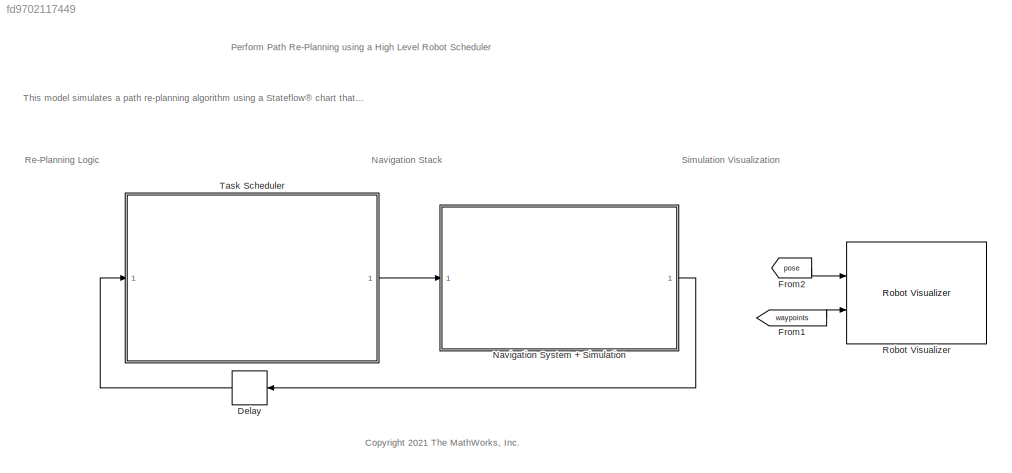
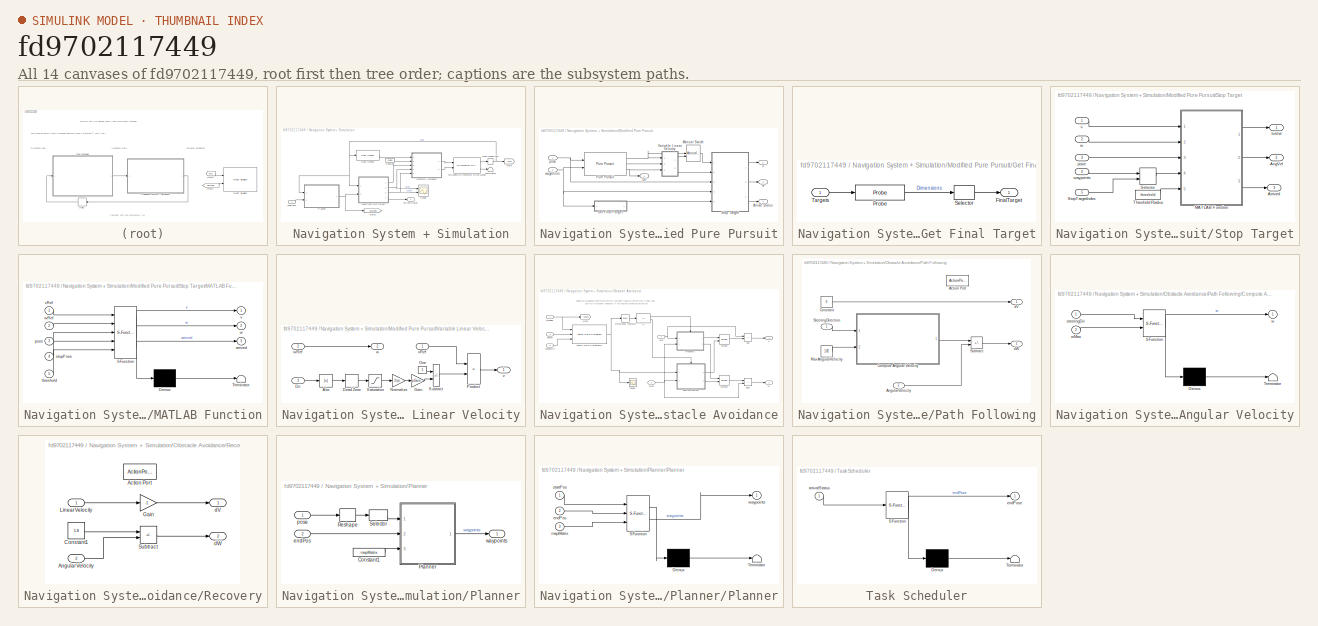
[diagram: thumbnail index - all 14 canvases of the model, root first then tree order]
MODEL slx_fd9702117449
KIND model
CONFIG AbsTol = auto
CONFIG EnableMultiTasking = on
CONFIG FixedStep = 0.01
CONFIG MaxStep = auto
CONFIG MinStep = auto
CONFIG PreLoadFcn = load('turtleBotMazeMap.mat')\nangles=0:pi/180:2*pi;\n[mapMatrix,mapResolution, mapOrigin] = convertMapToMatrix(myOccMap);\n
CONFIG RelTol = 1e-3
CONFIG SampleTimeConstraint = Unconstrained
CONFIG SolverName = VariableStepAuto
CONFIG StartTime = 0.0
CONFIG StopTime = inf
BLOCK [Delay] Delay
  DelayLength = 1
  InputPortMap = u0
  Ports = [1, 1]
BLOCK [From] From1
  GotoTag = waypoints
  TagVisibility = global
BLOCK [From] From2
  GotoTag = pose
  TagVisibility = global
BLOCK [SubSystem] Navigation System + Simulation
  NameLocation = top
  Ports = [1, 1]
  RequestExecContextInheritance = off
BLOCK [Constant] Navigation System + Simulation/Constant
  Value = angles
BLOCK [Goto] Navigation System + Simulation/Goto
  GotoTag = pose
  TagVisibility = global
BLOCK [Goto] Navigation System + Simulation/Goto1
  GotoTag = waypoints
  TagVisibility = global
BLOCK [Reference] Navigation System + Simulation/Lidar Sensor  REF=mobileRoboticsLib/Environments/Lidar Sensor
  Ports = [1, 1]
  SourceBlock = mobileRoboticsLib/Environments/Lidar Sensor
  SourceProductName = Mobile Robotics Simulation Toolbox
  SourceType = LidarSensor
BLOCK [SubSystem] Navigation System + Simulation/Modified Pure Pursuit
  Ports = [2, 4]
  RequestExecContextInheritance = off
BLOCK [Outport] Navigation System + Simulation/Modified Pure Pursuit/Arrival Status
  Port = 4
  VectorParamsAs1DForOutWhenUnconnected = off
BLOCK [Outport] Navigation System + Simulation/Modified Pure Pursuit/Dir
  VectorParamsAs1DForOutWhenUnconnected = off
BLOCK [SubSystem] Navigation System + Simulation/Modified Pure Pursuit/Get Final Target
  Ports = [1, 1]
  RequestExecContextInheritance = off
BLOCK [Outport] Navigation System + Simulation/Modified Pure Pursuit/Get Final Target/FinalTarget
BLOCK [Probe] Navigation System + Simulation/Modified Pure Pursuit/Get Final Target/Probe
  Ports = [1, 1]
  ProbeComplexSignal = off
  ProbeSampleTime = off
  ProbeSignalDimensions = on
  ProbeWidth = off
BLOCK [Selector] Navigation System + Simulation/Modified Pure Pursuit/Get Final Target/Selector
  IndexOptions = Index vector (dialog)
  Indices = 1
  InputPortWidth = 2
  OutputSizes = 1
  Ports = [1, 1]
BLOCK [Inport] Navigation System + Simulation/Modified Pure Pursuit/Get Final Target/Targets
BLOCK [ManualSwitch] Navigation System + Simulation/Modified Pure Pursuit/Manual Switch
  CurrentSetting = 0
  NameLocation = top
BLOCK [Reference] Navigation System + Simulation/Modified Pure Pursuit/Pure Pursuit  REF=robotalgslib/Pure Pursuit
  Ports = [2, 3]
  SourceBlock = robotalgslib/Pure Pursuit
  SourceProductBaseCode = NV,RO
  SourceType = nav.slalgs.internal.PurePursuit
BLOCK [SubSystem] Navigation System + Simulation/Modified Pure Pursuit/Stop Target
  Ports = [5, 3]
  RequestExecContextInheritance = off
BLOCK [Outport] Navigation System + Simulation/Modified Pure Pursuit/Stop Target/AngVel
  Port = 2
BLOCK [Outport] Navigation System + Simulation/Modified Pure Pursuit/Stop Target/Arrived
  Port = 3
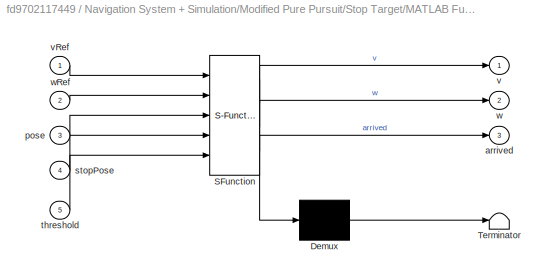
BLOCK [SubSystem] Navigation System + Simulation/Modified Pure Pursuit/Stop Target/MATLAB Function
  ErrorFcn = Stateflow.Translate.translate
  PermitHierarchicalResolution = ExplicitOnly
  Ports = [5, 3]
  RequestExecContextInheritance = off
  SFBlockType = MATLAB Function
  TreatAsAtomicUnit = on
BLOCK [Demux] Navigation System + Simulation/Modified Pure Pursuit/Stop Target/MATLAB Function/ Demux 
  Outputs = 1
  Ports = [1, 1]
BLOCK [S-Function] Navigation System + Simulation/Modified Pure Pursuit/Stop Target/MATLAB Function/ SFunction 
  EnableBusSupport = on
  FunctionName = sf_sfun
  PortCounts = [5 4]
  Ports = [5, 4]
  SFcnIsStateOwnerBlock = off
  SFunctionDeploymentMode = off
  Tag = Stateflow S-Function 2
BLOCK [Terminator] Navigation System + Simulation/Modified Pure Pursuit/Stop Target/MATLAB Function/ Terminator 
BLOCK [Outport] Navigation System + Simulation/Modified Pure Pursuit/Stop Target/MATLAB Function/arrived
  Port = 3
BLOCK [Inport] Navigation System + Simulation/Modified Pure Pursuit/Stop Target/MATLAB Function/pose
  Port = 3
BLOCK [Inport] Navigation System + Simulation/Modified Pure Pursuit/Stop Target/MATLAB Function/stopPose
  Port = 4
BLOCK [Inport] Navigation System + Simulation/Modified Pure Pursuit/Stop Target/MATLAB Function/threshold
  Port = 5
BLOCK [Outport] Navigation System + Simulation/Modified Pure Pursuit/Stop Target/MATLAB Function/v
BLOCK [Inport] Navigation System + Simulation/Modified Pure Pursuit/Stop Target/MATLAB Function/vRef
BLOCK [Outport] Navigation System + Simulation/Modified Pure Pursuit/Stop Target/MATLAB Function/w
  Port = 2
BLOCK [Inport] Navigation System + Simulation/Modified Pure Pursuit/Stop Target/MATLAB Function/wRef
  Port = 2
BLOCK [Selector] Navigation System + Simulation/Modified Pure Pursuit/Stop Target/Selector
  IndexOptions = Index vector (port),Index vector (dialog)
  Indices = [1 3],[1 2]
  InputPortWidth = 3
  NumberOfDimensions = 2
  OutputSizes = 1,1
  Ports = [2, 1]
BLOCK [Inport] Navigation System + Simulation/Modified Pure Pursuit/Stop Target/StopTargetIndex
  Port = 5
BLOCK [Constant] Navigation System + Simulation/Modified Pure Pursuit/Stop Target/Threshold Radius
  Value = threshold
BLOCK [Outport] Navigation System + Simulation/Modified Pure Pursuit/Stop Target/linVel
BLOCK [Inport] Navigation System + Simulation/Modified Pure Pursuit/Stop Target/pose
  Port = 3
BLOCK [Inport] Navigation System + Simulation/Modified Pure Pursuit/Stop Target/v
BLOCK [Inport] Navigation System + Simulation/Modified Pure Pursuit/Stop Target/w
  Port = 2
BLOCK [Inport] Navigation System + Simulation/Modified Pure Pursuit/Stop Target/waypoints
  Port = 4
BLOCK [SubSystem] Navigation System + Simulation/Modified Pure Pursuit/Variable Linear Velocity
  Ports = [3, 2]
  RequestExecContextInheritance = off
BLOCK [Abs] Navigation System + Simulation/Modified Pure Pursuit/Variable Linear Velocity/Abs
  SaturateOnIntegerOverflow = off
BLOCK [DeadZone] Navigation System + Simulation/Modified Pure Pursuit/Variable Linear Velocity/Dead Zone
  LowerValue = -deadZone
  UpperValue = deadZone
BLOCK [Inport] Navigation System + Simulation/Modified Pure Pursuit/Variable Linear Velocity/Dir
  Port = 3
BLOCK [Gain] Navigation System + Simulation/Modified Pure Pursuit/Variable Linear Velocity/Gain
  Gain = pGain
BLOCK [Gain] Navigation System + Simulation/Modified Pure Pursuit/Variable Linear Velocity/Normalize
  Gain = 2/pi
BLOCK [Constant] Navigation System + Simulation/Modified Pure Pursuit/Variable Linear Velocity/One
  OutDataTypeStr = Inherit: Inherit via back propagation
BLOCK [Product] Navigation System + Simulation/Modified Pure Pursuit/Variable Linear Velocity/Product
  Ports = [2, 1]
BLOCK [Saturate] Navigation System + Simulation/Modified Pure Pursuit/Variable Linear Velocity/Saturation
  LowerLimit = 0
  UpperLimit = pi/2
BLOCK [Sum] Navigation System + Simulation/Modified Pure Pursuit/Variable Linear Velocity/Subtract
  IconShape = rectangular
  Inputs = +-
  Ports = [2, 1]
BLOCK [Outport] Navigation System + Simulation/Modified Pure Pursuit/Variable Linear Velocity/v
BLOCK [Inport] Navigation System + Simulation/Modified Pure Pursuit/Variable Linear Velocity/vRef
  NameLocation = top
BLOCK [Outport] Navigation System + Simulation/Modified Pure Pursuit/Variable Linear Velocity/w
  Port = 2
BLOCK [Inport] Navigation System + Simulation/Modified Pure Pursuit/Variable Linear Velocity/wRef
  Port = 2
BLOCK [Inport] Navigation System + Simulation/Modified Pure Pursuit/pose
BLOCK [Outport] Navigation System + Simulation/Modified Pure Pursuit/v
  Port = 2
  VectorParamsAs1DForOutWhenUnconnected = off
BLOCK [Outport] Navigation System + Simulation/Modified Pure Pursuit/w
  Port = 3
  VectorParamsAs1DForOutWhenUnconnected = off
BLOCK [Inport] Navigation System + Simulation/Modified Pure Pursuit/waypoints
  Port = 2
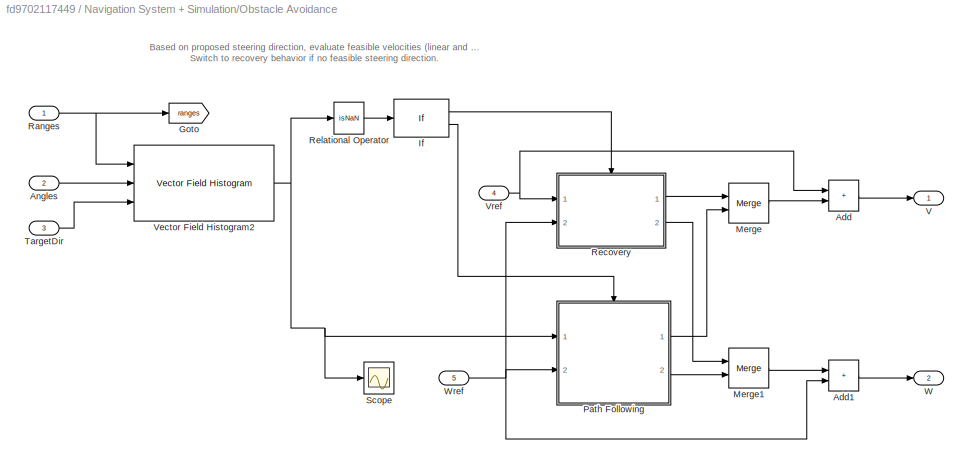
BLOCK [SubSystem] Navigation System + Simulation/Obstacle Avoidance
  Ports = [5, 2]
  RequestExecContextInheritance = off
BLOCK [Sum] Navigation System + Simulation/Obstacle Avoidance/Add
  IconShape = rectangular
  Ports = [2, 1]
BLOCK [Sum] Navigation System + Simulation/Obstacle Avoidance/Add1
  IconShape = rectangular
  Ports = [2, 1]
BLOCK [Inport] Navigation System + Simulation/Obstacle Avoidance/Angles
  Port = 2
BLOCK [Goto] Navigation System + Simulation/Obstacle Avoidance/Goto
  GotoTag = ranges
  TagVisibility = global
BLOCK [If] Navigation System + Simulation/Obstacle Avoidance/If
  IfExpression = u1 == 1
  Ports = [1, 2]
BLOCK [Merge] Navigation System + Simulation/Obstacle Avoidance/Merge
  Ports = [2, 1]
BLOCK [Merge] Navigation System + Simulation/Obstacle Avoidance/Merge1
  Ports = [2, 1]
BLOCK [SubSystem] Navigation System + Simulation/Obstacle Avoidance/Path Following
  Ports = [2, 2, 0, 0, 0, 0, 0, 1]
  RequestExecContextInheritance = off
  TreatAsAtomicUnit = on
BLOCK [ActionPort] Navigation System + Simulation/Obstacle Avoidance/Path Following/Action Port
  ActionPortLabel = else
BLOCK [Inport] Navigation System + Simulation/Obstacle Avoidance/Path Following/AngularVelocity
  Port = 2
BLOCK [SubSystem] Navigation System + Simulation/Obstacle Avoidance/Path Following/Compute Angular Velocity
  ErrorFcn = Stateflow.Translate.translate
  PermitHierarchicalResolution = ExplicitOnly
  Ports = [2, 1]
  RequestExecContextInheritance = off
  SFBlockType = MATLAB Function
  TreatAsAtomicUnit = on
BLOCK [Demux] Navigation System + Simulation/Obstacle Avoidance/Path Following/Compute Angular Velocity/ Demux 
  Outputs = 1
  Ports = [1, 1]
BLOCK [S-Function] Navigation System + Simulation/Obstacle Avoidance/Path Following/Compute Angular Velocity/ SFunction 
  EnableBusSupport = on
  FunctionName = sf_sfun
  PortCounts = [2 2]
  Ports = [2, 2]
  SFcnIsStateOwnerBlock = off
  SFunctionDeploymentMode = off
  Tag = Stateflow S-Function 3
BLOCK [Terminator] Navigation System + Simulation/Obstacle Avoidance/Path Following/Compute Angular Velocity/ Terminator 
BLOCK [Inport] Navigation System + Simulation/Obstacle Avoidance/Path Following/Compute Angular Velocity/steeringDir
BLOCK [Outport] Navigation System + Simulation/Obstacle Avoidance/Path Following/Compute Angular Velocity/w
  VectorParamsAs1DForOutWhenUnconnected = off
BLOCK [Inport] Navigation System + Simulation/Obstacle Avoidance/Path Following/Compute Angular Velocity/wMax
  Port = 2
BLOCK [Constant] Navigation System + Simulation/Obstacle Avoidance/Path Following/Constant
  Value = 0
BLOCK [Constant] Navigation System + Simulation/Obstacle Avoidance/Path Following/MaxAngularVelocity
  Value = 1.82
BLOCK [Inport] Navigation System + Simulation/Obstacle Avoidance/Path Following/SteeringDirection
BLOCK [Sum] Navigation System + Simulation/Obstacle Avoidance/Path Following/Subtract
  IconShape = rectangular
  Inputs = +-
  Ports = [2, 1]
BLOCK [Outport] Navigation System + Simulation/Obstacle Avoidance/Path Following/dV
  VectorParamsAs1DForOutWhenUnconnected = off
BLOCK [Outport] Navigation System + Simulation/Obstacle Avoidance/Path Following/dW
  Port = 2
  VectorParamsAs1DForOutWhenUnconnected = off
BLOCK [Inport] Navigation System + Simulation/Obstacle Avoidance/Ranges
BLOCK [SubSystem] Navigation System + Simulation/Obstacle Avoidance/Recovery
  Ports = [2, 2, 0, 0, 0, 0, 0, 1]
  RequestExecContextInheritance = off
  TreatAsAtomicUnit = on
BLOCK [ActionPort] Navigation System + Simulation/Obstacle Avoidance/Recovery/Action Port
  ActionPortLabel = if(u1 == 1)
BLOCK [Inport] Navigation System + Simulation/Obstacle Avoidance/Recovery/AngularVelocity
  Port = 2
BLOCK [Constant] Navigation System + Simulation/Obstacle Avoidance/Recovery/Constant1
  Value = 1.8
BLOCK [Gain] Navigation System + Simulation/Obstacle Avoidance/Recovery/Gain
  Gain = -1
BLOCK [Inport] Navigation System + Simulation/Obstacle Avoidance/Recovery/LinearVelocity
BLOCK [Sum] Navigation System + Simulation/Obstacle Avoidance/Recovery/Subtract
  IconShape = rectangular
  Inputs = +-
  Ports = [2, 1]
BLOCK [Outport] Navigation System + Simulation/Obstacle Avoidance/Recovery/dV
  VectorParamsAs1DForOutWhenUnconnected = off
BLOCK [Outport] Navigation System + Simulation/Obstacle Avoidance/Recovery/dW
  Port = 2
  VectorParamsAs1DForOutWhenUnconnected = off
BLOCK [RelationalOperator] Navigation System + Simulation/Obstacle Avoidance/Relational Operator
  InputSameDT = off
  Operator = isNaN
  OutDataTypeStr = boolean
  Ports = [1, 1]
  RndMeth = Simplest
BLOCK [Scope] Navigation System + Simulation/Obstacle Avoidance/Scope
  Floating = off
  NumInputPorts = 1
  Ports = [1]
  ScopeSpecificationString = Simulink.scopes.TimeScopeBlockCfg('CurrentConfiguration', extmgr.ConfigurationSet(extmgr.Configuration('Core','General UI',true),extmgr.Configuration('Core','Source UI',true),extmgr.Configuration('Sources','WiredSimulink',true,'DataLoggingLimitDataPoints',true,'DataLoggingSaveFormat','Array','DataLoggingDecimation','1','DataLoggingVariableName','ScopeData1'),extmgr.Configuration('Visuals','Time Do...<+1678ch>
BLOCK [Inport] Navigation System + Simulation/Obstacle Avoidance/TargetDir
  Port = 3
BLOCK [Outport] Navigation System + Simulation/Obstacle Avoidance/V
  VectorParamsAs1DForOutWhenUnconnected = off
BLOCK [Reference] Navigation System + Simulation/Obstacle Avoidance/Vector Field Histogram2  REF=robotalgslib/Vector Field Histogram
  Ports = [3, 1]
  SourceBlock = robotalgslib/Vector Field Histogram
  SourceProductBaseCode = NV,RO
  SourceType = nav.slalgs.internal.VectorFieldHistogram
BLOCK [Inport] Navigation System + Simulation/Obstacle Avoidance/Vref
  Port = 4
BLOCK [Outport] Navigation System + Simulation/Obstacle Avoidance/W
  Port = 2
  VectorParamsAs1DForOutWhenUnconnected = off
BLOCK [Inport] Navigation System + Simulation/Obstacle Avoidance/Wref
  Port = 5
BLOCK [SubSystem] Navigation System + Simulation/Planner
  Ports = [2, 1]
  RequestExecContextInheritance = off
BLOCK [Constant] Navigation System + Simulation/Planner/Constant1
  Value = mapMatrix
BLOCK [SubSystem] Navigation System + Simulation/Planner/Planner
  ErrorFcn = Stateflow.Translate.translate
  PermitHierarchicalResolution = ExplicitOnly
  Ports = [3, 1]
  RequestExecContextInheritance = off
  SFBlockType = MATLAB Function
  TreatAsAtomicUnit = on
BLOCK [Demux] Navigation System + Simulation/Planner/Planner/ Demux 
  Outputs = 1
  Ports = [1, 1]
BLOCK [S-Function] Navigation System + Simulation/Planner/Planner/ SFunction 
  EnableBusSupport = on
  FunctionName = sf_sfun
  Parameters = inflateRadius,mapOrigin,mapResolution
  PortCounts = [3 2]
  Ports = [3, 2]
  SFcnIsStateOwnerBlock = off
  SFunctionDeploymentMode = off
  Tag = Stateflow S-Function 1
BLOCK [Terminator] Navigation System + Simulation/Planner/Planner/ Terminator 
BLOCK [Inport] Navigation System + Simulation/Planner/Planner/endPos
  Port = 2
BLOCK [Inport] Navigation System + Simulation/Planner/Planner/mapMatrix
  Port = 3
BLOCK [Inport] Navigation System + Simulation/Planner/Planner/startPos
BLOCK [Outport] Navigation System + Simulation/Planner/Planner/waypoints
  VectorParamsAs1DForOutWhenUnconnected = off
BLOCK [Reshape] Navigation System + Simulation/Planner/Reshape
  OutputDimensionality = Row vector (2-D)
  Ports = [1, 1]
BLOCK [Selector] Navigation System + Simulation/Planner/Selector
  IndexOptions = Index vector (dialog)
  Indices = [1 2]
  InputPortWidth = 3
  OutputSizes = 1
  Ports = [1, 1]
BLOCK [Inport] Navigation System + Simulation/Planner/endPos
  NameLocation = top
  Port = 2
BLOCK [Inport] Navigation System + Simulation/Planner/pose
  NameLocation = top
BLOCK [Outport] Navigation System + Simulation/Planner/waypoints
BLOCK [RateTransition] Navigation System + Simulation/Rate Transition
  OutPortSampleTime = 0.02
BLOCK [Scope] Navigation System + Simulation/Scope
  Floating = off
  NumInputPorts = 2
  Ports = [2]
  ScopeSpecificationString = Simulink.scopes.TimeScopeBlockCfg('CurrentConfiguration', extmgr.ConfigurationSet(extmgr.Configuration('Core','General UI',true),extmgr.Configuration('Core','Source UI',true),extmgr.Configuration('Sources','WiredSimulink',true),extmgr.Configuration('Visuals','Time Domain',true,'SerializedDisplays',{struct('MinYLimReal','0.02201','MaxYLimReal','0.28644','YLabelReal','','MinYLimMag','0.02201','MaxYL...<+2032ch>
BLOCK [Terminator] Navigation System + Simulation/Terminator
BLOCK [Reference] Navigation System + Simulation/Turtlebot3 Differential Drive Model  REF=robotmobilelib/Differential Drive Kinematic Model
  Ports = [2, 2]
  SourceBlock = robotmobilelib/Differential Drive Kinematic Model
  SourceProductBaseCode = RO
  SourceType = Differential Drive Kinematic Model
BLOCK [Outport] Navigation System + Simulation/arrivalStatus
BLOCK [Inport] Navigation System + Simulation/endPose
BLOCK [Reference] Robot Visualizer  REF=mobileRoboticsLib/Environments/Robot Visualizer
  Ports = [2]
  Priority = 99
  SourceBlock = mobileRoboticsLib/Environments/Robot Visualizer
  SourceProductName = Mobile Robotics Simulation Toolbox
  SourceType = Visualizer2D
BLOCK [SubSystem] Task Scheduler
  ErrorFcn = Stateflow.Translate.translate
  NameLocation = top
  PermitHierarchicalResolution = ExplicitOnly
  Ports = [1, 1]
  RequestExecContextInheritance = off
  SFBlockType = Chart
  TreatAsAtomicUnit = on
BLOCK [Demux] Task Scheduler/ Demux 
  Outputs = 1
  Ports = [1, 1]
BLOCK [S-Function] Task Scheduler/ SFunction 
  EnableBusSupport = on
  FunctionName = sf_sfun
  PortCounts = [1 2]
  Ports = [1, 2]
  SFcnIsStateOwnerBlock = off
  SFunctionDeploymentMode = off
  Tag = Stateflow S-Function 4
BLOCK [Terminator] Task Scheduler/ Terminator 
BLOCK [Inport] Task Scheduler/arrivalStatus
BLOCK [Outport] Task Scheduler/endPose
ANNOTATION (root): Perform Path Re-Planning using a High Level Robot Scheduler
ANNOTATION (root): <copyright redacted>
ANNOTATION (root): This model simulates a path re-planning algorithm using a Stateflow® chart that directs a robot to navigate between three different target positions while generating and following an efficient path and avoiding any dynamic obstacle sin the environment.
ANNOTATION (root): Navigation Stack
ANNOTATION (root): Re-Planning Logic
ANNOTATION (root): Simulation Visualization
ANNOTATION Navigation System + Simulation/Obstacle Avoidance: Based on proposed steering direction, evaluate feasible velocities (linear and angular). Switch to recovery behavior if no feasible steering direction.
LINE Delay:1 -> Task Scheduler:1
LINE From1:1 -> Robot Visualizer:2
LINE From2:1 -> Robot Visualizer:1
LINE Navigation System + Simulation/Constant:1 -> Navigation System + Simulation/Obstacle Avoidance:2
LINE Navigation System + Simulation/Lidar Sensor:1 -> Navigation System + Simulation/Obstacle Avoidance:1
LINE Navigation System + Simulation/Modified Pure Pursuit/Get Final Target/Probe:1 -> Navigation System + Simulation/Modified Pure Pursuit/Get Final Target/Selector:1
LINE Navigation System + Simulation/Modified Pure Pursuit/Get Final Target/Selector:1 -> Navigation System + Simulation/Modified Pure Pursuit/Get Final Target/FinalTarget:1
LINE Navigation System + Simulation/Modified Pure Pursuit/Get Final Target/Targets:1 -> Navigation System + Simulation/Modified Pure Pursuit/Get Final Target/Probe:1
LINE Navigation System + Simulation/Modified Pure Pursuit/Get Final Target:1 -> Navigation System + Simulation/Modified Pure Pursuit/Stop Target:5
LINE Navigation System + Simulation/Modified Pure Pursuit/Manual Switch:1 -> Navigation System + Simulation/Modified Pure Pursuit/Stop Target:1
NET Navigation System + Simulation/Modified Pure Pursuit/Pure Pursuit:1 -> Navigation System + Simulation/Modified Pure Pursuit/Manual Switch:1, Navigation System + Simulation/Modified Pure Pursuit/Variable Linear Velocity:1
LINE Navigation System + Simulation/Modified Pure Pursuit/Pure Pursuit:2 -> Navigation System + Simulation/Modified Pure Pursuit/Variable Linear Velocity:2
NET Navigation System + Simulation/Modified Pure Pursuit/Pure Pursuit:3 -> Navigation System + Simulation/Modified Pure Pursuit/Dir:1, Navigation System + Simulation/Modified Pure Pursuit/Variable Linear Velocity:3
LINE Navigation System + Simulation/Modified Pure Pursuit/Stop Target/MATLAB Function:1 -> Navigation System + Simulation/Modified Pure Pursuit/Stop Target/linVel:1
LINE Navigation System + Simulation/Modified Pure Pursuit/Stop Target/MATLAB Function:2 -> Navigation System + Simulation/Modified Pure Pursuit/Stop Target/AngVel:1
LINE Navigation System + Simulation/Modified Pure Pursuit/Stop Target/MATLAB Function:3 -> Navigation System + Simulation/Modified Pure Pursuit/Stop Target/Arrived:1
LINE Navigation System + Simulation/Modified Pure Pursuit/Stop Target/Selector:1 -> Navigation System + Simulation/Modified Pure Pursuit/Stop Target/MATLAB Function:4
LINE Navigation System + Simulation/Modified Pure Pursuit/Stop Target/StopTargetIndex:1 -> Navigation System + Simulation/Modified Pure Pursuit/Stop Target/Selector:2
LINE Navigation System + Simulation/Modified Pure Pursuit/Stop Target/Threshold Radius:1 -> Navigation System + Simulation/Modified Pure Pursuit/Stop Target/MATLAB Function:5
LINE Navigation System + Simulation/Modified Pure Pursuit/Stop Target/pose:1 -> Navigation System + Simulation/Modified Pure Pursuit/Stop Target/MATLAB Function:3
LINE Navigation System + Simulation/Modified Pure Pursuit/Stop Target/v:1 -> Navigation System + Simulation/Modified Pure Pursuit/Stop Target/MATLAB Function:1
LINE Navigation System + Simulation/Modified Pure Pursuit/Stop Target/w:1 -> Navigation System + Simulation/Modified Pure Pursuit/Stop Target/MATLAB Function:2
LINE Navigation System + Simulation/Modified Pure Pursuit/Stop Target/waypoints:1 -> Navigation System + Simulation/Modified Pure Pursuit/Stop Target/Selector:1
LINE Navigation System + Simulation/Modified Pure Pursuit/Stop Target:1 -> Navigation System + Simulation/Modified Pure Pursuit/v:1
LINE Navigation System + Simulation/Modified Pure Pursuit/Stop Target:2 -> Navigation System + Simulation/Modified Pure Pursuit/w:1
LINE Navigation System + Simulation/Modified Pure Pursuit/Stop Target:3 -> Navigation System + Simulation/Modified Pure Pursuit/Arrival Status:1
LINE Navigation System + Simulation/Modified Pure Pursuit/Variable Linear Velocity/Abs:1 -> Navigation System + Simulation/Modified Pure Pursuit/Variable Linear Velocity/Dead Zone:1
LINE Navigation System + Simulation/Modified Pure Pursuit/Variable Linear Velocity/Dead Zone:1 -> Navigation System + Simulation/Modified Pure Pursuit/Variable Linear Velocity/Saturation:1
LINE Navigation System + Simulation/Modified Pure Pursuit/Variable Linear Velocity/Dir:1 -> Navigation System + Simulation/Modified Pure Pursuit/Variable Linear Velocity/Abs:1
LINE Navigation System + Simulation/Modified Pure Pursuit/Variable Linear Velocity/Gain:1 -> Navigation System + Simulation/Modified Pure Pursuit/Variable Linear Velocity/Subtract:2
LINE Navigation System + Simulation/Modified Pure Pursuit/Variable Linear Velocity/Normalize:1 -> Navigation System + Simulation/Modified Pure Pursuit/Variable Linear Velocity/Gain:1
LINE Navigation System + Simulation/Modified Pure Pursuit/Variable Linear Velocity/One:1 -> Navigation System + Simulation/Modified Pure Pursuit/Variable Linear Velocity/Subtract:1
LINE Navigation System + Simulation/Modified Pure Pursuit/Variable Linear Velocity/Product:1 -> Navigation System + Simulation/Modified Pure Pursuit/Variable Linear Velocity/v:1
LINE Navigation System + Simulation/Modified Pure Pursuit/Variable Linear Velocity/Saturation:1 -> Navigation System + Simulation/Modified Pure Pursuit/Variable Linear Velocity/Normalize:1
LINE Navigation System + Simulation/Modified Pure Pursuit/Variable Linear Velocity/Subtract:1 -> Navigation System + Simulation/Modified Pure Pursuit/Variable Linear Velocity/Product:2
LINE Navigation System + Simulation/Modified Pure Pursuit/Variable Linear Velocity/vRef:1 -> Navigation System + Simulation/Modified Pure Pursuit/Variable Linear Velocity/Product:1
LINE Navigation System + Simulation/Modified Pure Pursuit/Variable Linear Velocity/wRef:1 -> Navigation System + Simulation/Modified Pure Pursuit/Variable Linear Velocity/w:1
LINE Navigation System + Simulation/Modified Pure Pursuit/Variable Linear Velocity:1 -> Navigation System + Simulation/Modified Pure Pursuit/Manual Switch:2
LINE Navigation System + Simulation/Modified Pure Pursuit/Variable Linear Velocity:2 -> Navigation System + Simulation/Modified Pure Pursuit/Stop Target:2
NET Navigation System + Simulation/Modified Pure Pursuit/pose:1 -> Navigation System + Simulation/Modified Pure Pursuit/Pure Pursuit:1, Navigation System + Simulation/Modified Pure Pursuit/Stop Target:3
NET Navigation System + Simulation/Modified Pure Pursuit/waypoints:1 -> Navigation System + Simulation/Modified Pure Pursuit/Get Final Target:1, Navigation System + Simulation/Modified Pure Pursuit/Pure Pursuit:2, Navigation System + Simulation/Modified Pure Pursuit/Stop Target:4
LINE Navigation System + Simulation/Modified Pure Pursuit:1 -> Navigation System + Simulation/Obstacle Avoidance:3
NET Navigation System + Simulation/Modified Pure Pursuit:2 -> Navigation System + Simulation/Obstacle Avoidance:4, Navigation System + Simulation/Scope:1
NET Navigation System + Simulation/Modified Pure Pursuit:3 -> Navigation System + Simulation/Obstacle Avoidance:5, Navigation System + Simulation/Scope:2
LINE Navigation System + Simulation/Modified Pure Pursuit:4 -> Navigation System + Simulation/arrivalStatus:1
LINE Navigation System + Simulation/Obstacle Avoidance/Add1:1 -> Navigation System + Simulation/Obstacle Avoidance/W:1
LINE Navigation System + Simulation/Obstacle Avoidance/Add:1 -> Navigation System + Simulation/Obstacle Avoidance/V:1
LINE Navigation System + Simulation/Obstacle Avoidance/Angles:1 -> Navigation System + Simulation/Obstacle Avoidance/Vector Field Histogram2:2
LINE Navigation System + Simulation/Obstacle Avoidance/If:1 -> Navigation System + Simulation/Obstacle Avoidance/Recovery:ifaction
LINE Navigation System + Simulation/Obstacle Avoidance/If:2 -> Navigation System + Simulation/Obstacle Avoidance/Path Following:ifaction
LINE Navigation System + Simulation/Obstacle Avoidance/Merge1:1 -> Navigation System + Simulation/Obstacle Avoidance/Add1:1
LINE Navigation System + Simulation/Obstacle Avoidance/Merge:1 -> Navigation System + Simulation/Obstacle Avoidance/Add:2
LINE Navigation System + Simulation/Obstacle Avoidance/Path Following/AngularVelocity:1 -> Navigation System + Simulation/Obstacle Avoidance/Path Following/Subtract:2
LINE Navigation System + Simulation/Obstacle Avoidance/Path Following/Compute Angular Velocity:1 -> Navigation System + Simulation/Obstacle Avoidance/Path Following/Subtract:1
LINE Navigation System + Simulation/Obstacle Avoidance/Path Following/Constant:1 -> Navigation System + Simulation/Obstacle Avoidance/Path Following/dV:1
LINE Navigation System + Simulation/Obstacle Avoidance/Path Following/MaxAngularVelocity:1 -> Navigation System + Simulation/Obstacle Avoidance/Path Following/Compute Angular Velocity:2
LINE Navigation System + Simulation/Obstacle Avoidance/Path Following/SteeringDirection:1 -> Navigation System + Simulation/Obstacle Avoidance/Path Following/Compute Angular Velocity:1
LINE Navigation System + Simulation/Obstacle Avoidance/Path Following/Subtract:1 -> Navigation System + Simulation/Obstacle Avoidance/Path Following/dW:1
LINE Navigation System + Simulation/Obstacle Avoidance/Path Following:1 -> Navigation System + Simulation/Obstacle Avoidance/Merge:2
LINE Navigation System + Simulation/Obstacle Avoidance/Path Following:2 -> Navigation System + Simulation/Obstacle Avoidance/Merge1:2
NET Navigation System + Simulation/Obstacle Avoidance/Ranges:1 -> Navigation System + Simulation/Obstacle Avoidance/Goto:1, Navigation System + Simulation/Obstacle Avoidance/Vector Field Histogram2:1
LINE Navigation System + Simulation/Obstacle Avoidance/Recovery/AngularVelocity:1 -> Navigation System + Simulation/Obstacle Avoidance/Recovery/Subtract:2
LINE Navigation System + Simulation/Obstacle Avoidance/Recovery/Constant1:1 -> Navigation System + Simulation/Obstacle Avoidance/Recovery/Subtract:1
LINE Navigation System + Simulation/Obstacle Avoidance/Recovery/Gain:1 -> Navigation System + Simulation/Obstacle Avoidance/Recovery/dV:1
LINE Navigation System + Simulation/Obstacle Avoidance/Recovery/LinearVelocity:1 -> Navigation System + Simulation/Obstacle Avoidance/Recovery/Gain:1
LINE Navigation System + Simulation/Obstacle Avoidance/Recovery/Subtract:1 -> Navigation System + Simulation/Obstacle Avoidance/Recovery/dW:1
LINE Navigation System + Simulation/Obstacle Avoidance/Recovery:1 -> Navigation System + Simulation/Obstacle Avoidance/Merge:1
LINE Navigation System + Simulation/Obstacle Avoidance/Recovery:2 -> Navigation System + Simulation/Obstacle Avoidance/Merge1:1
LINE Navigation System + Simulation/Obstacle Avoidance/Relational Operator:1 -> Navigation System + Simulation/Obstacle Avoidance/If:1
LINE Navigation System + Simulation/Obstacle Avoidance/TargetDir:1 -> Navigation System + Simulation/Obstacle Avoidance/Vector Field Histogram2:3
NET Navigation System + Simulation/Obstacle Avoidance/Vector Field Histogram2:1 -> Navigation System + Simulation/Obstacle Avoidance/Path Following:1, Navigation System + Simulation/Obstacle Avoidance/Relational Operator:1, Navigation System + Simulation/Obstacle Avoidance/Scope:1
NET Navigation System + Simulation/Obstacle Avoidance/Vref:1 -> Navigation System + Simulation/Obstacle Avoidance/Add:1, Navigation System + Simulation/Obstacle Avoidance/Recovery:1
NET Navigation System + Simulation/Obstacle Avoidance/Wref:1 -> Navigation System + Simulation/Obstacle Avoidance/Add1:2, Navigation System + Simulation/Obstacle Avoidance/Path Following:2, Navigation System + Simulation/Obstacle Avoidance/Recovery:2
LINE Navigation System + Simulation/Obstacle Avoidance:1 -> Navigation System + Simulation/Turtlebot3 Differential Drive Model:1
LINE Navigation System + Simulation/Obstacle Avoidance:2 -> Navigation System + Simulation/Turtlebot3 Differential Drive Model:2
LINE Navigation System + Simulation/Planner/Constant1:1 -> Navigation System + Simulation/Planner/Planner:3
LINE Navigation System + Simulation/Planner/Planner:1 -> Navigation System + Simulation/Planner/waypoints:1
LINE Navigation System + Simulation/Planner/Reshape:1 -> Navigation System + Simulation/Planner/Selector:1
LINE Navigation System + Simulation/Planner/Selector:1 -> Navigation System + Simulation/Planner/Planner:1
LINE Navigation System + Simulation/Planner/endPos:1 -> Navigation System + Simulation/Planner/Planner:2
LINE Navigation System + Simulation/Planner/pose:1 -> Navigation System + Simulation/Planner/Reshape:1
NET Navigation System + Simulation/Planner:1 -> Navigation System + Simulation/Goto1:1, Navigation System + Simulation/Modified Pure Pursuit:2
NET Navigation System + Simulation/Rate Transition:1 -> Navigation System + Simulation/Goto:1, Navigation System + Simulation/Lidar Sensor:1, Navigation System + Simulation/Modified Pure Pursuit:1, Navigation System + Simulation/Planner:1
LINE Navigation System + Simulation/Turtlebot3 Differential Drive Model:1 -> Navigation System + Simulation/Rate Transition:1
LINE Navigation System + Simulation/Turtlebot3 Differential Drive Model:2 -> Navigation System + Simulation/Terminator:1
LINE Navigation System + Simulation/endPose:1 -> Navigation System + Simulation/Planner:2
LINE Navigation System + Simulation:1 -> Delay:1
LINE Task Scheduler:1 -> Navigation System + Simulation:1
note: NET lines group one-source signal fan-out (src -> all destinations, sorted); 1:1 wires keep LINE
CHART Navigation System + Simulation/Planner/Planner states=1 transitions=1
  STATE_LABEL 'eML_blk_kernel()'
  STATE_LABEL 'SCRIPT:\nfunction waypoints = PRM_codegen(startPos, endPos, mapMatrix, mapResolution, mapOrigin, inflateRadius)\n\npersistent waypointsInternal\npersistent prevStartPos\npersistent prevEndPos\n\n% Set constant parameters\nmaxNumNodes = 50;\n\n% Initialize persistent variables that are used downstream\nif isempty(prevStartPos)\n    prevStartPos = startPos;\nend\n\nif isempty(prevEndPos)\n    prevEndPos = endPos;\ne...<+1281ch>'
CHART Navigation System + Simulation/Modified Pure Pursuit/Stop Target/MATLAB Function states=1 transitions=1
  STATE_LABEL 'eML_blk_kernel()'
  STATE_LABEL 'SCRIPT:\nfunction [v, w, arrived] = arrivalThreshold(vRef, wRef, pose, stopPose, threshold)\n\neucDist = sqrt((stopPose(1)-pose(1))^2 + (stopPose(2)-pose(2))^2);\n\nif eucDist > threshold\n    v = vRef;\n    w = wRef;\n    arrived = 0;\nelse\n    v = 0;\n    w = 0;\n    arrived = 1;\nend'
CHART Navigation System + Simulation/Obstacle Avoidance/Path Following/Compute Angular Velocity states=1 transitions=1
  STATE_LABEL 'eML_blk_kernel()'
  STATE_LABEL "SCRIPT:\nfunction w = exampleHelperComputeAngularVelocity(steeringDir, wMax)\n%EXAMPLEHELPERCOMPUTEANGULARVELOCITY Compute angular velocity\n%   W = exampleHelperComputeAngularVelocity(STEERINGDIR)\n%   returns the angular velocity W for a differential drive robot in radians\n%   per second for a given steering direction STEERINGDIR in the robot's\n%   coordinate frame in radians.\n%\n%   W = exampleHelpe...<+1444ch>"
CHART Task Scheduler states=3 transitions=4
  STATE_LABEL 'GoBottomRight\nendPose = [4 0];'
  STATE_LABEL 'GotTopLeft\nendPose = [0 4];'
  STATE_LABEL 'GotTopRight\nendPose = [4 4];'
CHART  states=0 transitions=0
CHART  states=0 transitions=0
CHART  states=0 transitions=0
CHART  states=0 transitions=0
